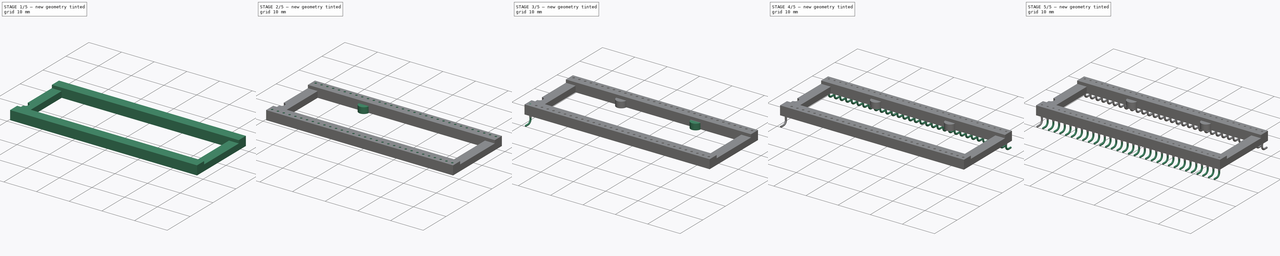
[diagram: build sequence overview — one tinted view per stage of 5, left to right]
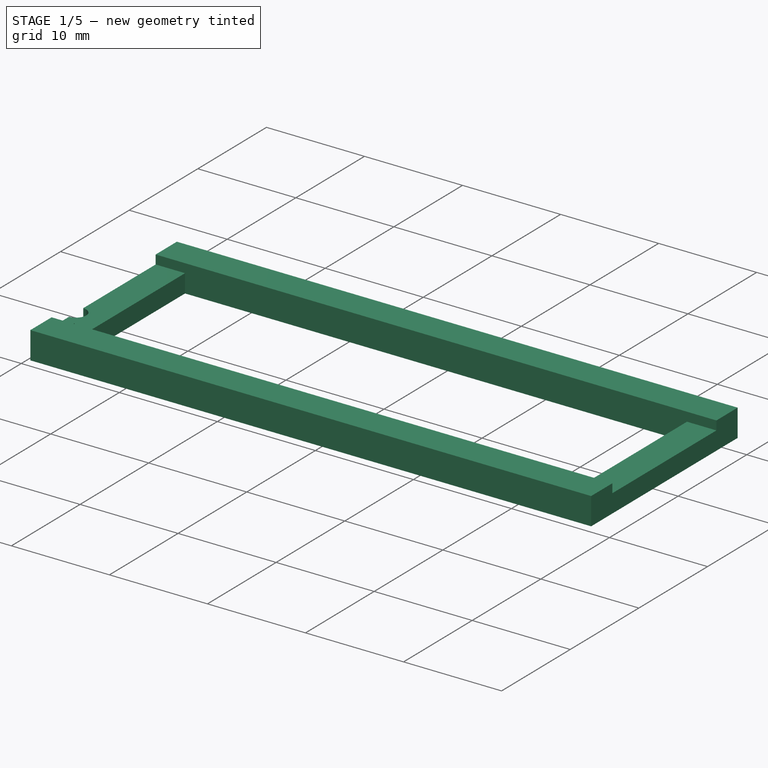
[diagram: stage 1 of 5 — iso view after this stage's code; geometry added in this stage tinted green]
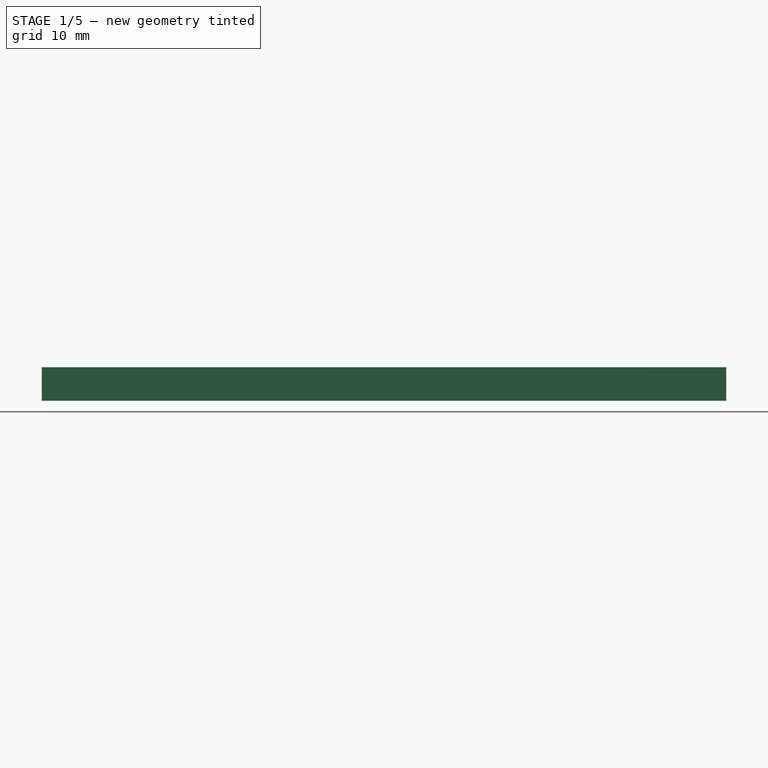
[diagram: stage 1 of 5 — front view after this stage's code; geometry added in this stage tinted green]
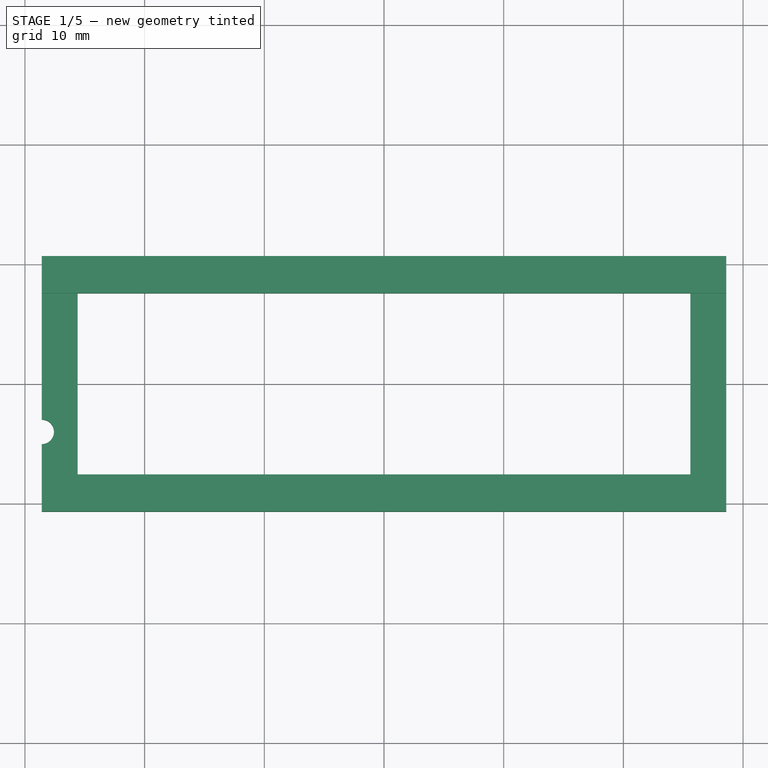
[diagram: stage 1 of 5 — top view after this stage's code; geometry added in this stage tinted green]
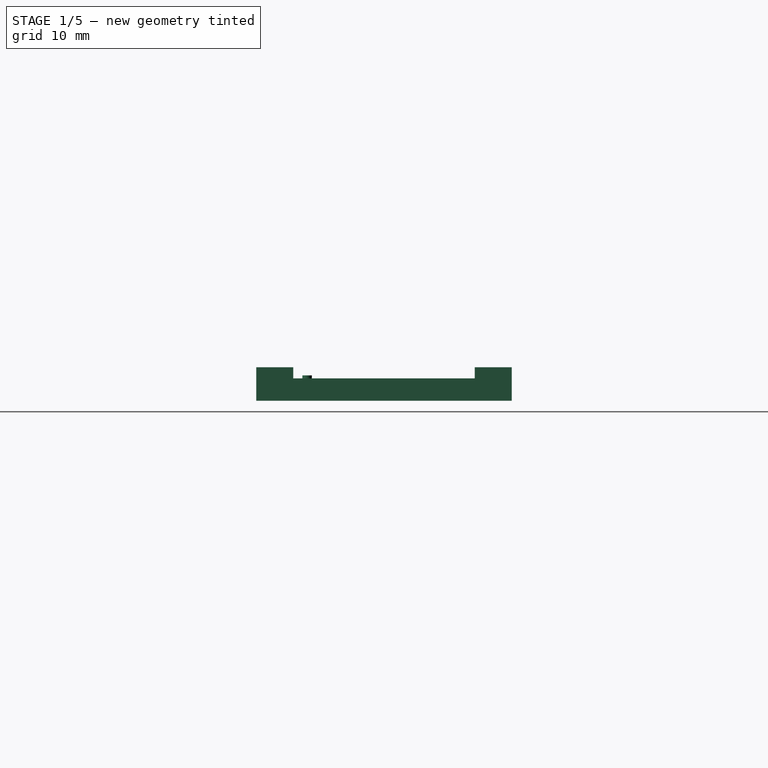
[diagram: stage 1 of 5 — right view after this stage's code; geometry added in this stage tinted green]
FCSTD DOCUMENT  (FreeCAD 0.20R29177 (Git))
Label: Mill-Max_117-43_v2
License: All rights reserved
LicenseURL: http://en.wikipedia.org/wiki/All_rights_reserved
objects: Sketcher::SketchObject×7, PartDesign::Fillet×6, PartDesign::SubtractiveCylinder×5, PartDesign::AdditiveCylinder×4, PartDesign::SubtractiveBox×3, PartDesign::LinearPattern×3, PartDesign::Body×3, PartDesign::AdditivePipe×2, PartDesign::Chamfer×2, Part::FeaturePython×2, PartDesign::AdditiveBox×1, App::Part×1, PartDesign::Mirrored×1, PartDesign::MultiTransform×1
note: 61 computed .brp shape members not serialized (recipe doc carries the construction recipe); baked Part::Feature solids carry a one-line shape summary decoded from their .brp

FEATURE [PartDesign::AdditiveBox] Box
  AttacherType = Attacher::AttachEngine3D
  AttachmentOffset = pos=(-28.6,-10.67,2.8) rot=(0,0,1;0rad)
  Height = 2.79
  Length = 57.2
  MapMode = 5
  Placement = pos=(-28.6,-10.67,2.8) rot=(0,0,1;0rad)
  Support = -> [XY_Plane]
  Width = 21.34
FEATURE [PartDesign::SubtractiveBox] Box001
  AttacherType = Attacher::AttachEngine3D
  AttachmentOffset = pos=(-25.6,-7.58,0) rot=(0,0,1;0rad)
  BaseFeature = -> Box
  Height = 10
  Length = 51.2
  MapMode = 5
  Placement = pos=(-25.6,-7.58,0) rot=(0,0,1;0rad)
  Support = -> [XY_Plane]
  Width = 15.16
FEATURE [PartDesign::SubtractiveBox] Box002
  AttacherType = Attacher::AttachEngine3D
  AttachmentOffset = pos=(-29.16,-7.58,4.67) rot=(0,0,1;0rad)
  BaseFeature = -> Box001
  Height = 0.92
  Length = 4
  MapMode = 5
  Placement = pos=(-29.16,-7.58,4.67) rot=(0,0,1;0rad)
  Support = -> [XY_Plane]
  Width = 15.16
FEATURE [PartDesign::SubtractiveBox] Box003
  AttacherType = Attacher::AttachEngine3D
  AttachmentOffset = pos=(25,-7.58,4.67) rot=(0,0,1;0rad)
  BaseFeature = -> Box002
  Height = 0.92
  Length = 4
  MapMode = 5
  Placement = pos=(25,-7.58,4.67) rot=(0,0,1;0rad)
  Support = -> [XY_Plane]
  Width = 15.16
FEATURE [PartDesign::SubtractiveCylinder] Cylinder  label="Pin1-indication-cut"
  Angle = 180
  AttacherType = Attacher::AttachEngine3D
  AttachmentOffset = pos=(-28.6,-4,0) rot=(0,0,-1;1.5708rad)
  BaseFeature = -> Box003
  FirstAngle = 0
  Height = 5
  MapMode = 5
  Placement = pos=(-28.6,-4,0) rot=(0,0,-1;1.5708rad)
  Radius = 1.025
  SecondAngle = 0
  Support = -> [XY_Plane]
FEATURE [PartDesign::AdditiveCylinder] Cylinder001  label="raised-coin-left"
  Angle = 360
  AttacherType = Attacher::AttachEngine3D
  AttachmentOffset = pos=(-27.559,-6.425,4.67) rot=(0,0,1;0rad)
  BaseFeature = -> Cylinder
  FirstAngle = 0
  Height = 0.25
  MapMode = 5
  Placement = pos=(-27.559,-6.425,4.67) rot=(0,0,1;0rad)
  Radius = 0.4
  SecondAngle = 0
  Support = -> [XY_Plane]
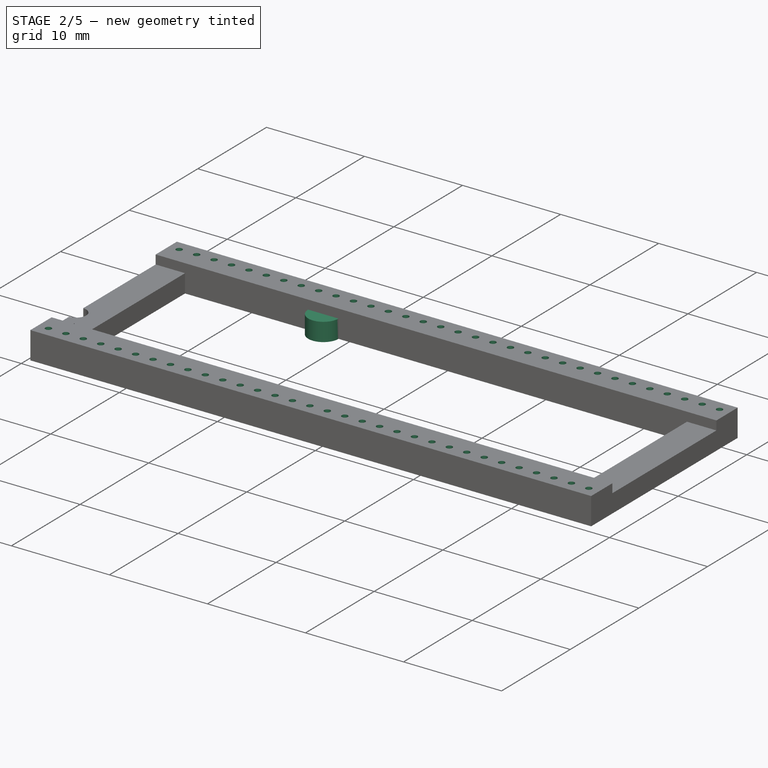
[diagram: stage 2 of 5 — iso view after this stage's code; geometry added in this stage tinted green]
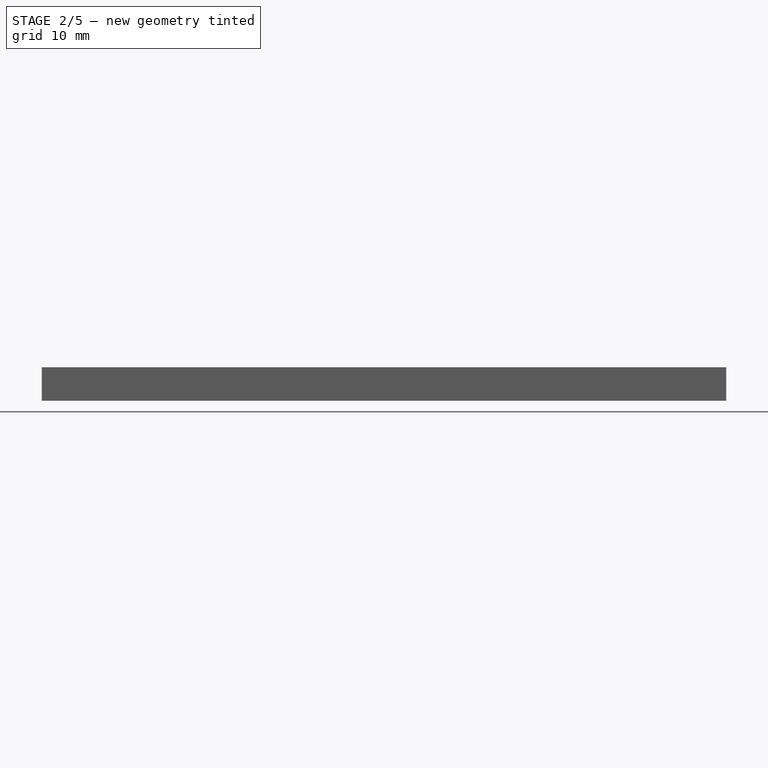
[diagram: stage 2 of 5 — front view after this stage's code; geometry added in this stage tinted green]
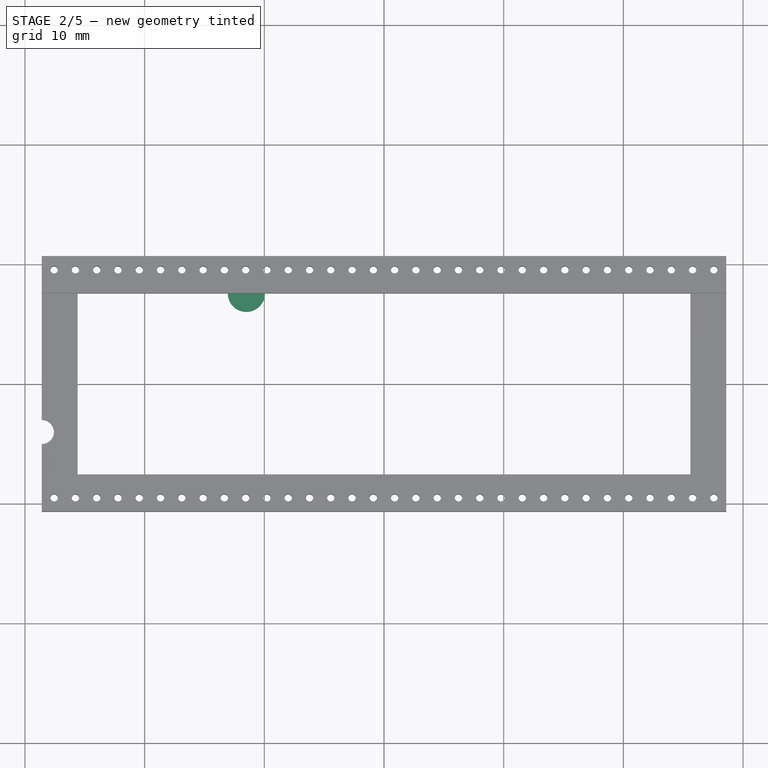
[diagram: stage 2 of 5 — top view after this stage's code; geometry added in this stage tinted green]
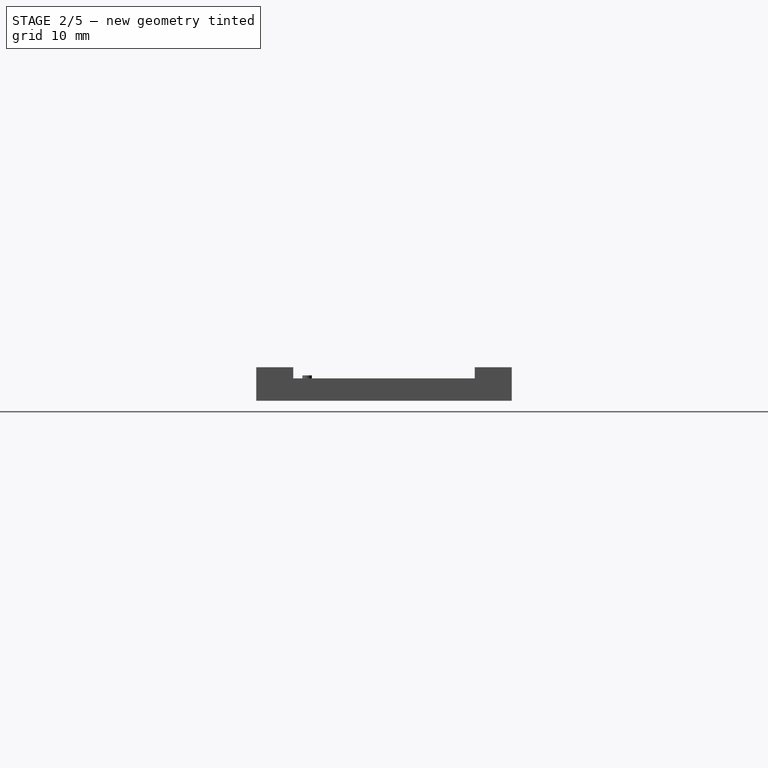
[diagram: stage 2 of 5 — right view after this stage's code; geometry added in this stage tinted green]
FEATURE [PartDesign::SubtractiveCylinder] Cylinder002  label="pin-hole"
  Angle = 360
  AttacherType = Attacher::AttachEngine3D
  AttachmentOffset = pos=(-27.559,-9.525,0) rot=(0,0,1;0rad)
  BaseFeature = -> Cylinder001
  FirstAngle = 0
  Height = 10
  MapMode = 5
  Placement = pos=(-27.559,-9.525,0) rot=(0,0,1;0rad)
  Radius = 0.3105
  SecondAngle = 0
  Support = -> [XY_Plane]
FEATURE [PartDesign::LinearPattern] LinearPattern
  BaseFeature = -> Cylinder002
  Direction = -> X_Axis
  Length = 55.12
  Occurrences = 32
  Originals = -> [Cylinder002]
  Placement = pos=(-27.559,-9.525,0) rot=(0,0,1;0rad)
FEATURE [PartDesign::SubtractiveCylinder] Cylinder003  label="pin-hole-top"
  Angle = 360
  AttacherType = Attacher::AttachEngine3D
  AttachmentOffset = pos=(-27.559,9.525,0) rot=(0,0,1;0rad)
  BaseFeature = -> LinearPattern
  FirstAngle = 0
  Height = 10
  MapMode = 5
  Placement = pos=(-27.559,9.525,0) rot=(0,0,1;0rad)
  Radius = 0.3105
  SecondAngle = 0
  Support = -> [XY_Plane]
FEATURE [PartDesign::LinearPattern] LinearPattern001
  BaseFeature = -> Cylinder003
  Direction = -> X_Axis
  Length = 55.12
  Occurrences = 32
  Originals = -> [Cylinder003]
  Placement = pos=(-27.559,9.525,0) rot=(0,0,1;0rad)
FEATURE [App::Part] Part  label="Pins"
  Group = -> [Body002,Array001,Body001,Array]
  Origin = -> Origin003
FEATURE [PartDesign::AdditiveCylinder] Cylinder008
  Angle = 180
  AttacherType = Attacher::AttachEngine3D
  AttachmentOffset = pos=(-11.5,7.6,2.8) rot=(0,0,1;3.14159rad)
  BaseFeature = -> LinearPattern001
  FirstAngle = 0
  Height = 1.87
  MapMode = 5
  Placement = pos=(-11.5,7.6,2.8) rot=(0,0,1;3.14159rad)
  Radius = 1.55
  SecondAngle = 0
  Support = -> [XY_Plane]
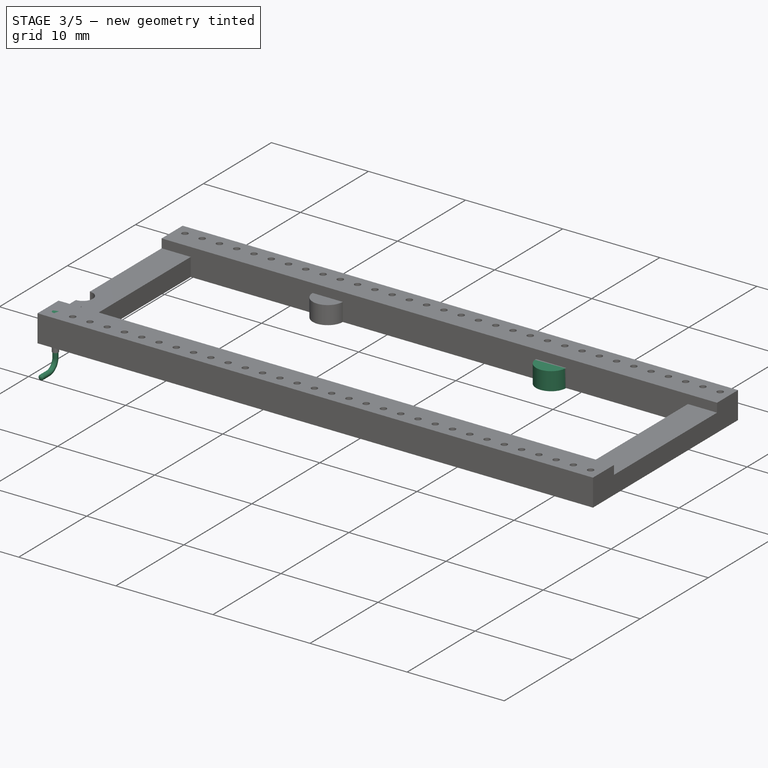
[diagram: stage 3 of 5 — iso view after this stage's code; geometry added in this stage tinted green]
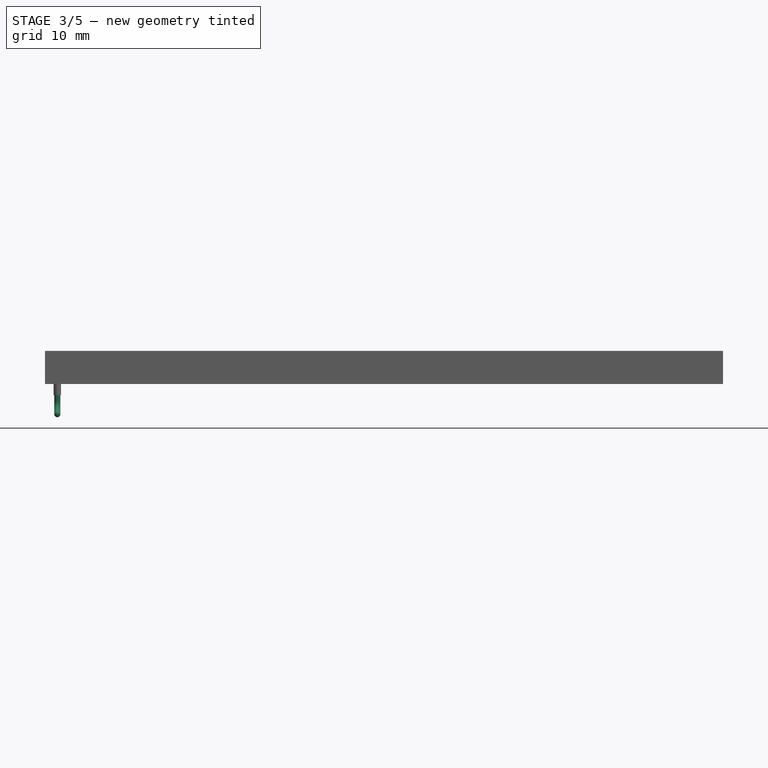
[diagram: stage 3 of 5 — front view after this stage's code; geometry added in this stage tinted green]
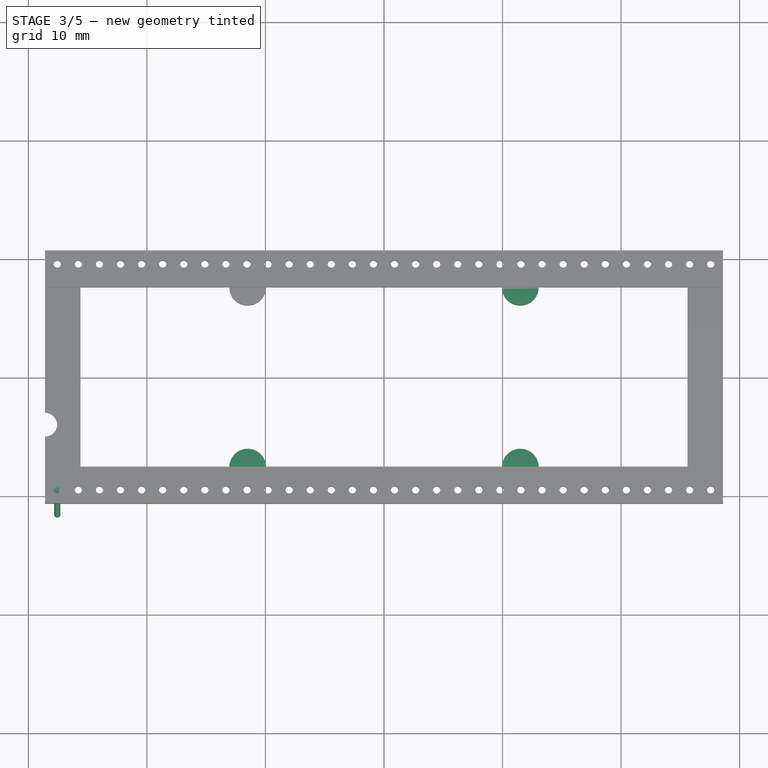
[diagram: stage 3 of 5 — top view after this stage's code; geometry added in this stage tinted green]
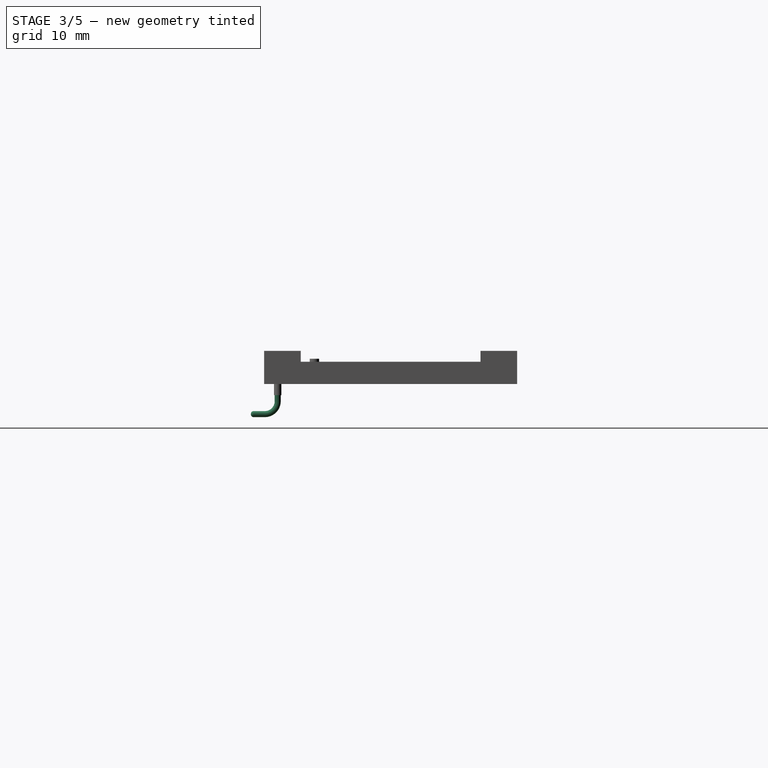
[diagram: stage 3 of 5 — right view after this stage's code; geometry added in this stage tinted green]
FEATURE [PartDesign::AdditiveCylinder] Cylinder006  label="pin-top-base001"
  Angle = 360
  AttacherType = Attacher::AttachEngine3D
  AttachmentOffset = pos=(-27.559,-9.525,1.86) rot=(0,0,1;0rad)
  FirstAngle = 0
  Height = 3.73
  MapMode = 5
  Placement = pos=(-27.559,-9.525,1.86) rot=(0,0,1;0rad)
  Radius = 0.31
  SecondAngle = 0
  Support = -> [XY_Plane002]
FEATURE [Sketcher::SketchObject] Sketch005  label="leg-path-top001"
  FullyConstrained = false
  MapMode = 4
  Placement = pos=(-27.559,-9.525,1.86) rot=(0.57735,0.57735,0.57735;2.0944rad)
  Support = -> [Cylinder006]
  sketch-geometry (3):
    g0: LineSegment StartX=0 StartY=0 StartZ=0 EndX=0 EndY=-0.516088 EndZ=0
    g1: LineSegment StartX=-2.26 StartY=-1.60544 StartZ=0 EndX=-1.08936 EndY=-1.60544 EndZ=0
    g2: ArcOfCircle CenterX=-1.08936 CenterY=-0.516088 CenterZ=0 NormalX=0 NormalY=0 NormalZ=1 AngleXU=0 Radius=1.08936 StartAngle=4.71239 EndAngle=6.28319
  constraints (4):
    c: Coincident(g0,g-1)
    c: Horizontal(g1)
    c: Tangent(g1,g2) = -1.5708
    c: Tangent(g0,g2) = 1.5708
FEATURE [Sketcher::SketchObject] Sketch006  label="leg-length001"
  FullyConstrained = false
  MapMode = 2
  Placement = pos=(-27.559,-9.525,0) rot=(0,0,1;0rad)
  sketch-geometry (3):
    g0: LineSegment StartX=0 StartY=0 StartZ=0 EndX=0 EndY=-2.26 EndZ=0
    g1: LineSegment StartX=0 StartY=0 StartZ=0 EndX=0 EndY=-2.26 EndZ=0
    g2: LineSegment StartX=0 StartY=-2.26 StartZ=0 EndX=0 EndY=0 EndZ=0
  constraints (4):
    c: Coincident(g0,g-1)
    c: PointOnObject(g0,g-2)
    c: Vertical(g1)
    c: Vertical(g2)
FEATURE [Sketcher::SketchObject] Sketch007  label="bend-start001"
  FullyConstrained = false
  MapMode = 5
  Placement = pos=(-27.559,-9.525,1.86) rot=(1,0,0;3.14159rad)
  Support = -> [Cylinder006]
  sketch-geometry (9):
    g0: LineSegment StartX=0.103186 StartY=-0.255 StartZ=0 EndX=0.253276 EndY=-0.107349 EndZ=0
    g1: LineSegment StartX=0.253276 StartY=-0.107349 StartZ=0 EndX=0.255 EndY=0.103186 EndZ=0
    g2: LineSegment StartX=0.255 StartY=0.103186 StartZ=0 EndX=0.107349 EndY=0.253276 EndZ=0
    g3: LineSegment StartX=0.107349 StartY=0.253276 StartZ=0 EndX=-0.103186 EndY=0.255 EndZ=0
    g4: LineSegment StartX=-0.103186 StartY=0.255 StartZ=0 EndX=-0.253276 EndY=0.107349 EndZ=0
    g5: LineSegment StartX=-0.253276 StartY=0.107349 StartZ=0 EndX=-0.255 EndY=-0.103186 EndZ=0
    g6: LineSegment StartX=-0.255 StartY=-0.103186 StartZ=0 EndX=-0.107349 EndY=-0.253276 EndZ=0
    g7: LineSegment StartX=-0.107349 StartY=-0.253276 StartZ=0 EndX=0.103186 EndY=-0.255 EndZ=0
    g8: Circle CenterX=0 CenterY=0 CenterZ=0 NormalX=0 NormalY=0 NormalZ=1 AngleXU=0 Radius=0.275086
  constraints (17):
    c: Coincident(g0,g1)
    c: Coincident(g1,g2)
    c: Coincident(g2,g3)
    c: Coincident(g3,g4)
    c: Coincident(g4,g5)
    c: Coincident(g5,g6)
    c: Coincident(g6,g7)
    c: Coincident(g7,g0)
    c: Equal(g0, g1-g7) x7
    c: PointOnObject(g0,g8)
    c: PointOnObject(g1,g8)
    c: PointOnObject(g2,g8)
    c: PointOnObject(g3,g8)
    c: PointOnObject(g4,g8)
    c: PointOnObject(g5,g8)
    c: PointOnObject(g6,g8)
    c: PointOnObject(g7,g8)
FEATURE [PartDesign::AdditivePipe] AdditivePipe001
  AuxilleryCurvelinear = true
  AuxillerySpineTangent = false
  BaseFeature = -> Cylinder006
  Binormal = (0,0,0)
  Mode = 0
  Placement = pos=(-27.559,-9.525,1.86) rot=(0,0,1;0rad)
  Profile = -> Sketch007
  Spine = -> Sketch005
  SpineTangent = false
  Transformation = 0
  Transition = 0
FEATURE [PartDesign::Fillet] Fillet003
  Base = -> AdditivePipe001 [Edge55,Edge57,Edge49,Edge47]
  BaseFeature = -> AdditivePipe001
  Placement = pos=(-27.559,-9.525,1.86) rot=(0,0,1;0rad)
  Radius = 0.2
  SupportTransform = false
  UseAllEdges = false
FEATURE [PartDesign::Fillet] Fillet004
  Base = -> Fillet003 [Edge83,Edge79,Edge69,Edge65]
  BaseFeature = -> Fillet003
  Placement = pos=(-27.559,-9.525,1.86) rot=(0,0,1;0rad)
  Radius = 0.1
  SupportTransform = false
  UseAllEdges = false
FEATURE [PartDesign::Fillet] Fillet005
  Base = -> Fillet004 [Edge110,Edge92]
  BaseFeature = -> Fillet004
  Placement = pos=(-27.559,-9.525,1.86) rot=(0,0,1;0rad)
  Radius = 0.2205
  SupportTransform = false
  UseAllEdges = false
FEATURE [PartDesign::LinearPattern] LinearPattern002
  Direction = -> X_Axis
  Length = 23
  Occurrences = 2
  Placement = pos=(-11.5,7.6,2.8) rot=(0,0,1;3.14159rad)
FEATURE [PartDesign::Mirrored] Mirrored
  MirrorPlane = -> XZ_Plane
  Placement = pos=(-11.5,7.6,2.8) rot=(0,0,1;3.14159rad)
FEATURE [PartDesign::MultiTransform] MultiTransform
  BaseFeature = -> Cylinder008
  Originals = -> [Cylinder008]
  Placement = pos=(-11.5,7.6,2.8) rot=(0,0,1;3.14159rad)
  Transformations = -> [LinearPattern002,Mirrored]
FEATURE [PartDesign::Body] Body  label="Plastic"
  Group = -> [Box,Box001,Box002,Box003,Cylinder,Cylinder001,Cylinder002,LinearPattern,Cylinder003,LinearPattern001,Sketch002,Cylinder008,MultiTransform,LinearPattern002,Mirrored]
  Origin = -> Origin
  Tip = -> MultiTransform
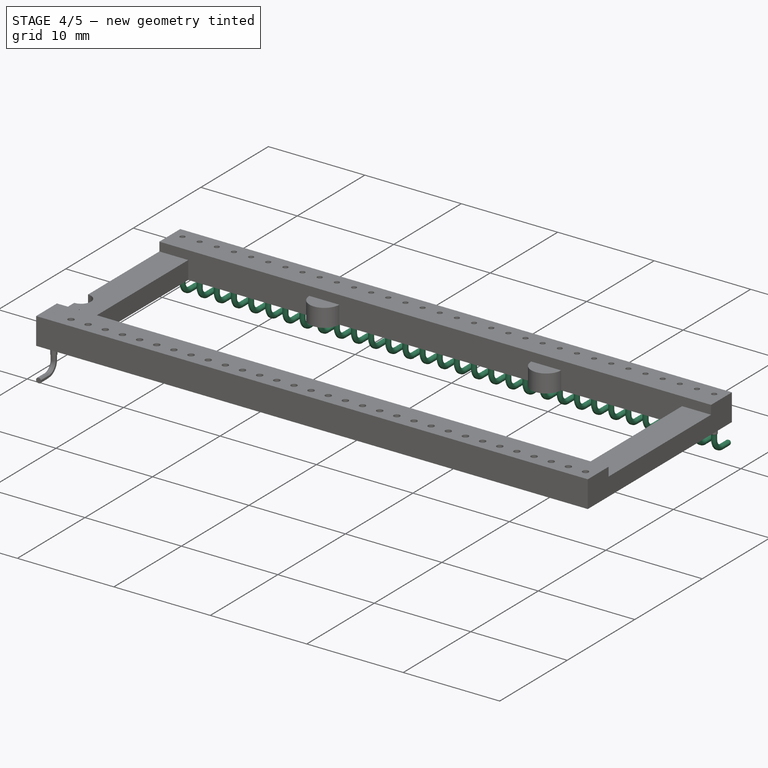
[diagram: stage 4 of 5 — iso view after this stage's code; geometry added in this stage tinted green]
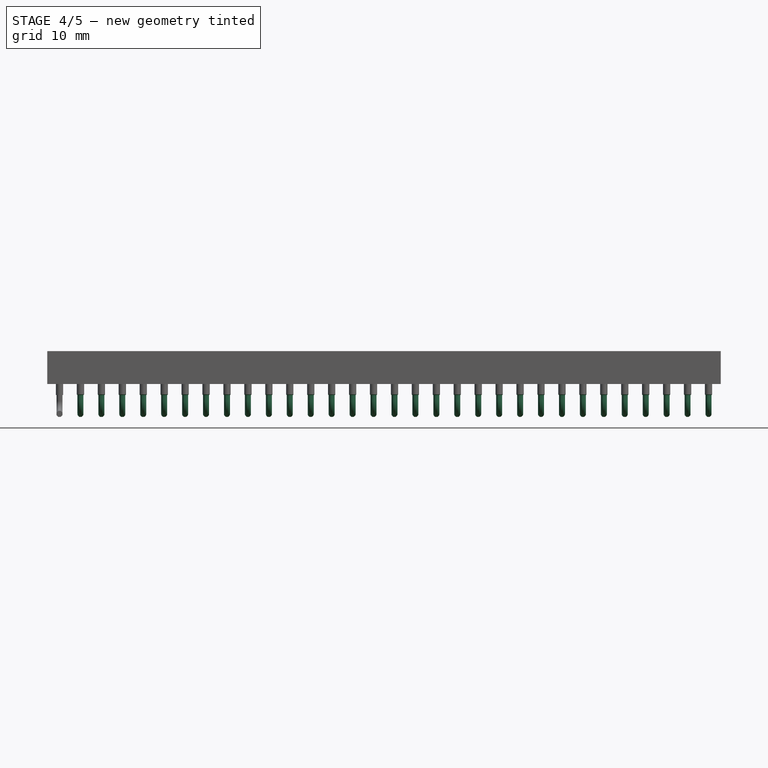
[diagram: stage 4 of 5 — front view after this stage's code; geometry added in this stage tinted green]
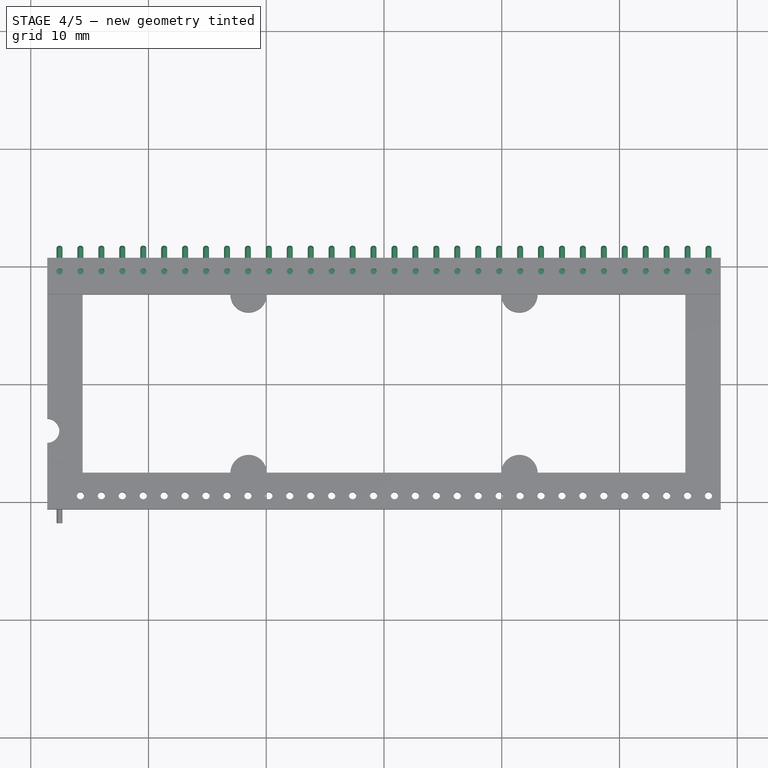
[diagram: stage 4 of 5 — top view after this stage's code; geometry added in this stage tinted green]
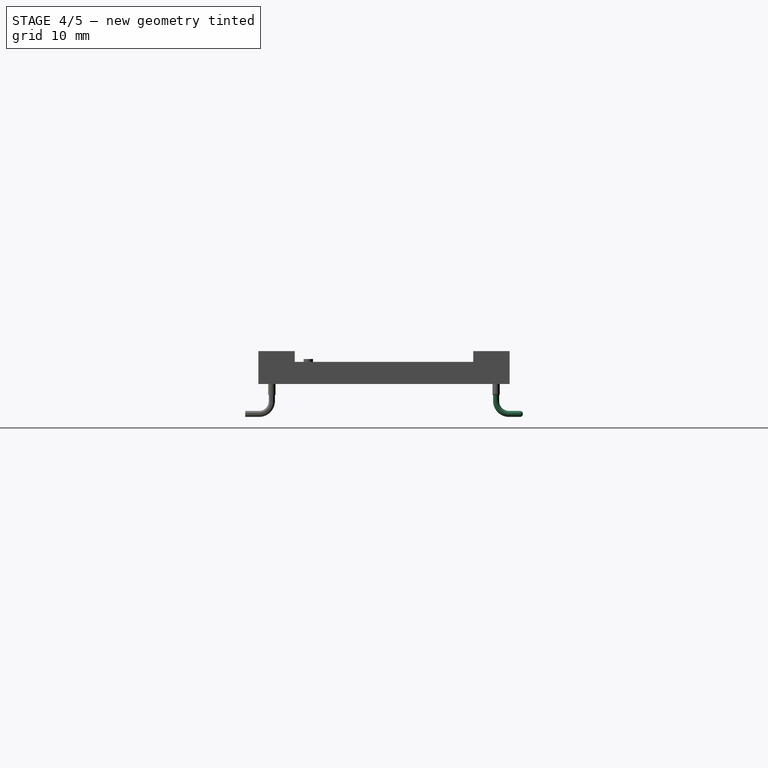
[diagram: stage 4 of 5 — right view after this stage's code; geometry added in this stage tinted green]
FEATURE [PartDesign::AdditiveCylinder] Cylinder004  label="pin-top-base"
  Angle = 360
  AttacherType = Attacher::AttachEngine3D
  AttachmentOffset = pos=(-27.559,-9.525,1.86) rot=(0,0,1;0rad)
  FirstAngle = 0
  Height = 3.73
  MapMode = 5
  Placement = pos=(-27.559,-9.525,1.86) rot=(0,0,1;0rad)
  Radius = 0.31
  SecondAngle = 0
  Support = -> [XY_Plane001]
FEATURE [Sketcher::SketchObject] Sketch002  label="pin-holes-sketch"
  FullyConstrained = false
  sketch-geometry (128):
    g0: Ellipse CenterX=-13.335 CenterY=9.525 CenterZ=0 NormalX=0 NormalY=0 NormalZ=1 MajorRadius=0.36 MinorRadius=0.36 AngleXU=1.5708
    g1: Ellipse CenterX=-13.335 CenterY=9.525 CenterZ=0 NormalX=0 NormalY=0 NormalZ=1 MajorRadius=0.26 MinorRadius=0.26 AngleXU=1.5708
    g2: Ellipse CenterX=-18.669 CenterY=-9.525 CenterZ=0 NormalX=0 NormalY=0 NormalZ=1 MajorRadius=0.36 MinorRadius=0.36 AngleXU=1.5708
    g3: Ellipse CenterX=-18.669 CenterY=-9.525 CenterZ=0 NormalX=0 NormalY=0 NormalZ=1 MajorRadius=0.26 MinorRadius=0.26 AngleXU=1.5708
    g4: Ellipse CenterX=24.003 CenterY=9.525 CenterZ=0 NormalX=0 NormalY=0 NormalZ=1 MajorRadius=0.36 MinorRadius=0.36 AngleXU=1.5708
    g5: Ellipse CenterX=24.003 CenterY=9.525 CenterZ=0 NormalX=0 NormalY=0 NormalZ=1 MajorRadius=0.26 MinorRadius=0.26 AngleXU=1.5708
    g6: Ellipse CenterX=-2.667 CenterY=-9.525 CenterZ=0 NormalX=0 NormalY=0 NormalZ=1 MajorRadius=0.36 MinorRadius=0.36 AngleXU=1.5708
    g7: Ellipse CenterX=-2.667 CenterY=-9.525 CenterZ=0 NormalX=0 NormalY=0 NormalZ=1 MajorRadius=0.26 MinorRadius=0.26 AngleXU=1.5708
    g8: Ellipse CenterX=18.669 CenterY=-9.525 CenterZ=0 NormalX=0 NormalY=0 NormalZ=1 MajorRadius=0.36 MinorRadius=0.36 AngleXU=1.5708
    g9: Ellipse CenterX=18.669 CenterY=-9.525 CenterZ=0 NormalX=0 NormalY=0 NormalZ=1 MajorRadius=0.26 MinorRadius=0.26 AngleXU=1.5708
    g10: Ellipse CenterX=15.113 CenterY=9.525 CenterZ=0 NormalX=0 NormalY=0 NormalZ=1 MajorRadius=0.36 MinorRadius=0.36 AngleXU=1.5708
    g11: Ellipse CenterX=15.113 CenterY=9.525 CenterZ=0 NormalX=0 NormalY=0 NormalZ=1 MajorRadius=0.26 MinorRadius=0.26 AngleXU=1.5708
    g12: Ellipse CenterX=22.225 CenterY=9.525 CenterZ=0 NormalX=0 NormalY=0 NormalZ=1 MajorRadius=0.36 MinorRadius=0.36 AngleXU=1.5708
    g13: Ellipse CenterX=22.225 CenterY=9.525 CenterZ=0 NormalX=0 NormalY=0 NormalZ=1 MajorRadius=0.26 MinorRadius=0.26 AngleXU=1.5708
    g14: Ellipse CenterX=8.001 CenterY=9.525 CenterZ=0 NormalX=0 NormalY=0 NormalZ=1 MajorRadius=0.36 MinorRadius=0.36 AngleXU=1.5708
    g15: Ellipse CenterX=8.001 CenterY=9.525 CenterZ=0 NormalX=0 NormalY=0 NormalZ=1 MajorRadius=0.26 MinorRadius=0.26 AngleXU=1.5708
    g16: Ellipse CenterX=9.779 CenterY=9.525 CenterZ=0 NormalX=0 NormalY=0 NormalZ=1 MajorRadius=0.36 MinorRadius=0.36 AngleXU=1.5708
    g17: Ellipse CenterX=9.779 CenterY=9.525 CenterZ=0 NormalX=0 NormalY=0 NormalZ=1 MajorRadius=0.26 MinorRadius=0.26 AngleXU=1.5708
    g18: Ellipse CenterX=-6.223 CenterY=-9.525 CenterZ=0 NormalX=0 NormalY=0 NormalZ=1 MajorRadius=0.36 MinorRadius=0.36 AngleXU=1.5708
    g19: Ellipse CenterX=-6.223 CenterY=-9.525 CenterZ=0 NormalX=0 NormalY=0 NormalZ=1 MajorRadius=0.26 MinorRadius=0.26 AngleXU=1.5708
    g20: Ellipse CenterX=20.447 CenterY=9.525 CenterZ=0 NormalX=0 NormalY=0 NormalZ=1 MajorRadius=0.36 MinorRadius=0.36 AngleXU=1.5708
    g21: Ellipse CenterX=20.447 CenterY=9.525 CenterZ=0 NormalX=0 NormalY=0 NormalZ=1 MajorRadius=0.26 MinorRadius=0.26 AngleXU=1.5708
    g22: Ellipse CenterX=-20.447 CenterY=-9.525 CenterZ=0 NormalX=0 NormalY=0 NormalZ=1 MajorRadius=0.36 MinorRadius=0.36 AngleXU=1.5708
    g23: Ellipse CenterX=-20.447 CenterY=-9.525 CenterZ=0 NormalX=0 NormalY=0 NormalZ=1 MajorRadius=0.26 MinorRadius=0.26 AngleXU=1.5708
    g24: Ellipse CenterX=13.335 CenterY=9.525 CenterZ=0 NormalX=0 NormalY=0 NormalZ=1 MajorRadius=0.36 MinorRadius=0.36 AngleXU=1.5708
    g25: Ellipse CenterX=13.335 CenterY=9.525 CenterZ=0 NormalX=0 NormalY=0 NormalZ=1 MajorRadius=0.26 MinorRadius=0.26 AngleXU=1.5708
    g26: Ellipse CenterX=-22.225 CenterY=9.525 CenterZ=0 NormalX=0 NormalY=0 NormalZ=1 MajorRadius=0.36 MinorRadius=0.36 AngleXU=1.5708
    g27: Ellipse CenterX=-22.225 CenterY=9.525 CenterZ=0 NormalX=0 NormalY=0 NormalZ=1 MajorRadius=0.26 MinorRadius=0.26 AngleXU=1.5708
    g28: Ellipse CenterX=-25.781 CenterY=-9.525 CenterZ=0 NormalX=0 NormalY=0 NormalZ=1 MajorRadius=0.36 MinorRadius=0.36 AngleXU=1.5708
    g29: Ellipse CenterX=-25.781 CenterY=-9.525 CenterZ=0 NormalX=0 NormalY=0 NormalZ=1 MajorRadius=0.26 MinorRadius=0.26 AngleXU=1.5708
    g30: Ellipse CenterX=-18.669 CenterY=9.525 CenterZ=0 NormalX=0 NormalY=0 NormalZ=1 MajorRadius=0.36 MinorRadius=0.36 AngleXU=1.5708
    g31: Ellipse CenterX=-18.669 CenterY=9.525 CenterZ=0 NormalX=0 NormalY=0 NormalZ=1 MajorRadius=0.26 MinorRadius=0.26 AngleXU=1.5708
    g32: Ellipse CenterX=18.669 CenterY=9.525 CenterZ=0 NormalX=0 NormalY=0 NormalZ=1 MajorRadius=0.36 MinorRadius=0.36 AngleXU=1.5708
    g33: Ellipse CenterX=18.669 CenterY=9.525 CenterZ=0 NormalX=0 NormalY=0 NormalZ=1 MajorRadius=0.26 MinorRadius=0.26 AngleXU=1.5708
    g34: Ellipse CenterX=2.667 CenterY=-9.525 CenterZ=0 NormalX=0 NormalY=0 NormalZ=1 MajorRadius=0.36 MinorRadius=0.36 AngleXU=1.5708
    g35: Ellipse CenterX=2.667 CenterY=-9.525 CenterZ=0 NormalX=0 NormalY=0 NormalZ=1 MajorRadius=0.26 MinorRadius=0.26 AngleXU=1.5708
    g36: Ellipse CenterX=-2.667 CenterY=9.525 CenterZ=0 NormalX=0 NormalY=0 NormalZ=1 MajorRadius=0.36 MinorRadius=0.36 AngleXU=1.5708
    g37: Ellipse CenterX=-2.667 CenterY=9.525 CenterZ=0 NormalX=0 NormalY=0 NormalZ=1 MajorRadius=0.26 MinorRadius=0.26 AngleXU=1.5708
    g38: Ellipse CenterX=-8.001 CenterY=-9.525 CenterZ=0 NormalX=0 NormalY=0 NormalZ=1 MajorRadius=0.36 MinorRadius=0.36 AngleXU=1.5708
    g39: Ellipse CenterX=-8.001 CenterY=-9.525 CenterZ=0 NormalX=0 NormalY=0 NormalZ=1 MajorRadius=0.26 MinorRadius=0.26 AngleXU=1.5708
    g40: Ellipse CenterX=-24.003 CenterY=9.525 CenterZ=0 NormalX=0 NormalY=0 NormalZ=1 MajorRadius=0.36 MinorRadius=0.36 AngleXU=1.5708
    g41: Ellipse CenterX=-24.003 CenterY=9.525 CenterZ=0 NormalX=0 NormalY=0 NormalZ=1 MajorRadius=0.26 MinorRadius=0.26 AngleXU=1.5708
    g42: Ellipse CenterX=0.889 CenterY=-9.525 CenterZ=0 NormalX=0 NormalY=0 NormalZ=1 MajorRadius=0.36 MinorRadius=0.36 AngleXU=1.5708
    g43: Ellipse CenterX=0.889 CenterY=-9.525 CenterZ=0 NormalX=0 NormalY=0 NormalZ=1 MajorRadius=0.26 MinorRadius=0.26 AngleXU=1.5708
    g44: Ellipse CenterX=25.781 CenterY=9.525 CenterZ=0 NormalX=0 NormalY=0 NormalZ=1 MajorRadius=0.36 MinorRadius=0.36 AngleXU=1.5708
    g45: Ellipse CenterX=25.781 CenterY=9.525 CenterZ=0 NormalX=0 NormalY=0 NormalZ=1 MajorRadius=0.26 MinorRadius=0.26 AngleXU=1.5708
    g46: Ellipse CenterX=16.891 CenterY=9.525 CenterZ=0 NormalX=0 NormalY=0 NormalZ=1 MajorRadius=0.36 MinorRadius=0.36 AngleXU=1.5708
    g47: Ellipse CenterX=16.891 CenterY=9.525 CenterZ=0 NormalX=0 NormalY=0 NormalZ=1 MajorRadius=0.26 MinorRadius=0.26 AngleXU=1.5708
    g48: Ellipse CenterX=0.889 CenterY=9.525 CenterZ=0 NormalX=0 NormalY=0 NormalZ=1 MajorRadius=0.36 MinorRadius=0.36 AngleXU=1.5708
    g49: Ellipse CenterX=0.889 CenterY=9.525 CenterZ=0 NormalX=0 NormalY=0 NormalZ=1 MajorRadius=0.26 MinorRadius=0.26 AngleXU=1.5708
    g50: Ellipse CenterX=15.113 CenterY=-9.525 CenterZ=0 NormalX=0 NormalY=0 NormalZ=1 MajorRadius=0.36 MinorRadius=0.36 AngleXU=1.5708
    g51: Ellipse CenterX=15.113 CenterY=-9.525 CenterZ=0 NormalX=0 NormalY=0 NormalZ=1 MajorRadius=0.26 MinorRadius=0.26 AngleXU=1.5708
    g52: Ellipse CenterX=6.223 CenterY=-9.525 CenterZ=0 NormalX=0 NormalY=0 NormalZ=1 MajorRadius=0.36 MinorRadius=0.36 AngleXU=1.5708
    g53: Ellipse CenterX=6.223 CenterY=-9.525 CenterZ=0 NormalX=0 NormalY=0 NormalZ=1 MajorRadius=0.26 MinorRadius=0.26 AngleXU=1.5708
    g54: Ellipse CenterX=4.445 CenterY=-9.525 CenterZ=0 NormalX=0 NormalY=0 NormalZ=1 MajorRadius=0.36 MinorRadius=0.36 AngleXU=1.5708
    g55: Ellipse CenterX=4.445 CenterY=-9.525 CenterZ=0 NormalX=0 NormalY=0 NormalZ=1 MajorRadius=0.26 MinorRadius=0.26 AngleXU=1.5708
    g56: Ellipse CenterX=-13.335 CenterY=-9.525 CenterZ=0 NormalX=0 NormalY=0 NormalZ=1 MajorRadius=0.36 MinorRadius=0.36 AngleXU=1.5708
    g57: Ellipse CenterX=-13.335 CenterY=-9.525 CenterZ=0 NormalX=0 NormalY=0 NormalZ=1 MajorRadius=0.26 MinorRadius=0.26 AngleXU=1.5708
    g58: Ellipse CenterX=8.001 CenterY=-9.525 CenterZ=0 NormalX=0 NormalY=0 NormalZ=1 MajorRadius=0.36 MinorRadius=0.36 AngleXU=1.5708
    g59: Ellipse CenterX=8.001 CenterY=-9.525 CenterZ=0 NormalX=0 NormalY=0 NormalZ=1 MajorRadius=0.26 MinorRadius=0.26 AngleXU=1.5708
    g60: Ellipse CenterX=11.557 CenterY=-9.525 CenterZ=0 NormalX=0 NormalY=0 NormalZ=1 MajorRadius=0.36 MinorRadius=0.36 AngleXU=1.5708
    g61: Ellipse CenterX=11.557 CenterY=-9.525 CenterZ=0 NormalX=0 NormalY=0 NormalZ=1 MajorRadius=0.26 MinorRadius=0.26 AngleXU=1.5708
    g62: Ellipse CenterX=2.667 CenterY=9.525 CenterZ=0 NormalX=0 NormalY=0 NormalZ=1 MajorRadius=0.36 MinorRadius=0.36 AngleXU=1.5708
    g63: Ellipse CenterX=2.667 CenterY=9.525 CenterZ=0 NormalX=0 NormalY=0 NormalZ=1 MajorRadius=0.26 MinorRadius=0.26 AngleXU=1.5708
    g64: Ellipse CenterX=-27.559 CenterY=-9.525 CenterZ=0 NormalX=0 NormalY=0 NormalZ=1 MajorRadius=0.36 MinorRadius=0.36 AngleXU=1.5708
    g65: Ellipse CenterX=-27.559 CenterY=-9.525 CenterZ=0 NormalX=0 NormalY=0 NormalZ=1 MajorRadius=0.26 MinorRadius=0.26 AngleXU=1.5708
    g66: Ellipse CenterX=13.335 CenterY=-9.525 CenterZ=0 NormalX=0 NormalY=0 NormalZ=1 MajorRadius=0.36 MinorRadius=0.36 AngleXU=1.5708
    g67: Ellipse CenterX=13.335 CenterY=-9.525 CenterZ=0 NormalX=0 NormalY=0 NormalZ=1 MajorRadius=0.26 MinorRadius=0.26 AngleXU=1.5708
    g68: Ellipse CenterX=27.559 CenterY=-9.525 CenterZ=0 NormalX=0 NormalY=0 NormalZ=1 MajorRadius=0.36 MinorRadius=0.36 AngleXU=1.5708
    g69: Ellipse CenterX=27.559 CenterY=-9.525 CenterZ=0 NormalX=0 NormalY=0 NormalZ=1 MajorRadius=0.26 MinorRadius=0.26 AngleXU=1.5708
    g70: Ellipse CenterX=-11.557 CenterY=9.525 CenterZ=0 NormalX=0 NormalY=0 NormalZ=1 MajorRadius=0.36 MinorRadius=0.36 AngleXU=1.5708
    g71: Ellipse CenterX=-11.557 CenterY=9.525 CenterZ=0 NormalX=0 NormalY=0 NormalZ=1 MajorRadius=0.26 MinorRadius=0.26 AngleXU=1.5708
    g72: Ellipse CenterX=-24.003 CenterY=-9.525 CenterZ=0 NormalX=0 NormalY=0 NormalZ=1 MajorRadius=0.36 MinorRadius=0.36 AngleXU=1.5708
    g73: Ellipse CenterX=-24.003 CenterY=-9.525 CenterZ=0 NormalX=0 NormalY=0 NormalZ=1 MajorRadius=0.26 MinorRadius=0.26 AngleXU=1.5708
    g74: Ellipse CenterX=16.891 CenterY=-9.525 CenterZ=0 NormalX=0 NormalY=0 NormalZ=1 MajorRadius=0.36 MinorRadius=0.36 AngleXU=1.5708
    g75: Ellipse CenterX=16.891 CenterY=-9.525 CenterZ=0 NormalX=0 NormalY=0 NormalZ=1 MajorRadius=0.26 MinorRadius=0.26 AngleXU=1.5708
    g76: Ellipse CenterX=-11.557 CenterY=-9.525 CenterZ=0 NormalX=0 NormalY=0 NormalZ=1 MajorRadius=0.36 MinorRadius=0.36 AngleXU=1.5708
    g77: Ellipse CenterX=-11.557 CenterY=-9.525 CenterZ=0 NormalX=0 NormalY=0 NormalZ=1 MajorRadius=0.26 MinorRadius=0.26 AngleXU=1.5708
    g78: Ellipse CenterX=6.223 CenterY=9.525 CenterZ=0 NormalX=0 NormalY=0 NormalZ=1 MajorRadius=0.36 MinorRadius=0.36 AngleXU=1.5708
    g79: Ellipse CenterX=6.223 CenterY=9.525 CenterZ=0 NormalX=0 NormalY=0 NormalZ=1 MajorRadius=0.26 MinorRadius=0.26 AngleXU=1.5708
    g80: Ellipse CenterX=11.557 CenterY=9.525 CenterZ=0 NormalX=0 NormalY=0 NormalZ=1 MajorRadius=0.36 MinorRadius=0.36 AngleXU=1.5708
    g81: Ellipse CenterX=11.557 CenterY=9.525 CenterZ=0 NormalX=0 NormalY=0 NormalZ=1 MajorRadius=0.26 MinorRadius=0.26 AngleXU=1.5708
    g82: Ellipse CenterX=-15.113 CenterY=9.525 CenterZ=0 NormalX=0 NormalY=0 NormalZ=1 MajorRadius=0.36 MinorRadius=0.36 AngleXU=1.5708
    g83: Ellipse CenterX=-15.113 CenterY=9.525 CenterZ=0 NormalX=0 NormalY=0 NormalZ=1 MajorRadius=0.26 MinorRadius=0.26 AngleXU=1.5708
    g84: Ellipse CenterX=20.447 CenterY=-9.525 CenterZ=0 NormalX=0 NormalY=0 NormalZ=1 MajorRadius=0.36 MinorRadius=0.36 AngleXU=1.5708
    g85: Ellipse CenterX=20.447 CenterY=-9.525 CenterZ=0 NormalX=0 NormalY=0 NormalZ=1 MajorRadius=0.26 MinorRadius=0.26 AngleXU=1.5708
    g86: Ellipse CenterX=-4.445 CenterY=9.525 CenterZ=0 NormalX=0 NormalY=0 NormalZ=1 MajorRadius=0.36 MinorRadius=0.36 AngleXU=1.5708
    g87: Ellipse CenterX=-4.445 CenterY=9.525 CenterZ=0 NormalX=0 NormalY=0 NormalZ=1 MajorRadius=0.26 MinorRadius=0.26 AngleXU=1.5708
    g88: Ellipse CenterX=-22.225 CenterY=-9.525 CenterZ=0 NormalX=0 NormalY=0 NormalZ=1 MajorRadius=0.36 MinorRadius=0.36 AngleXU=1.5708
    g89: Ellipse CenterX=-22.225 CenterY=-9.525 CenterZ=0 NormalX=0 NormalY=0 NormalZ=1 MajorRadius=0.26 MinorRadius=0.26 AngleXU=1.5708
    g90: Ellipse CenterX=-9.779 CenterY=9.525 CenterZ=0 NormalX=0 NormalY=0 NormalZ=1 MajorRadius=0.36 MinorRadius=0.36 AngleXU=1.5708
    g91: Ellipse CenterX=-9.779 CenterY=9.525 CenterZ=0 NormalX=0 NormalY=0 NormalZ=1 MajorRadius=0.26 MinorRadius=0.26 AngleXU=1.5708
    g92: Ellipse CenterX=25.781 CenterY=-9.525 CenterZ=0 NormalX=0 NormalY=0 NormalZ=1 MajorRadius=0.36 MinorRadius=0.36 AngleXU=1.5708
    g93: Ellipse CenterX=25.781 CenterY=-9.525 CenterZ=0 NormalX=0 NormalY=0 NormalZ=1 MajorRadius=0.26 MinorRadius=0.26 AngleXU=1.5708
    g94: Ellipse CenterX=-9.779 CenterY=-9.525 CenterZ=0 NormalX=0 NormalY=0 NormalZ=1 MajorRadius=0.36 MinorRadius=0.36 AngleXU=1.5708
    g95: Ellipse CenterX=-9.779 CenterY=-9.525 CenterZ=0 NormalX=0 NormalY=0 NormalZ=1 MajorRadius=0.26 MinorRadius=0.26 AngleXU=1.5708
    g96: Ellipse CenterX=9.779 CenterY=-9.525 CenterZ=0 NormalX=0 NormalY=0 NormalZ=1 MajorRadius=0.36 MinorRadius=0.36 AngleXU=1.5708
    g97: Ellipse CenterX=9.779 CenterY=-9.525 CenterZ=0 NormalX=0 NormalY=0 NormalZ=1 MajorRadius=0.26 MinorRadius=0.26 AngleXU=1.5708
    g98: Ellipse CenterX=-27.559 CenterY=9.525 CenterZ=0 NormalX=0 NormalY=0 NormalZ=1 MajorRadius=0.36 MinorRadius=0.36 AngleXU=1.5708
    g99: Ellipse CenterX=-27.559 CenterY=9.525 CenterZ=0 NormalX=0 NormalY=0 NormalZ=1 MajorRadius=0.26 MinorRadius=0.26 AngleXU=1.5708
    g100: Ellipse CenterX=-25.781 CenterY=9.525 CenterZ=0 NormalX=0 NormalY=0 NormalZ=1 MajorRadius=0.36 MinorRadius=0.36 AngleXU=1.5708
    g101: Ellipse CenterX=-25.781 CenterY=9.525 CenterZ=0 NormalX=0 NormalY=0 NormalZ=1 MajorRadius=0.26 MinorRadius=0.26 AngleXU=1.5708
    g102: Ellipse CenterX=-0.889 CenterY=-9.525 CenterZ=0 NormalX=0 NormalY=0 NormalZ=1 MajorRadius=0.36 MinorRadius=0.36 AngleXU=1.5708
    g103: Ellipse CenterX=-0.889 CenterY=-9.525 CenterZ=0 NormalX=0 NormalY=0 NormalZ=1 MajorRadius=0.26 MinorRadius=0.26 AngleXU=1.5708
    g104: Ellipse CenterX=4.445 CenterY=9.525 CenterZ=0 NormalX=0 NormalY=0 NormalZ=1 MajorRadius=0.36 MinorRadius=0.36 AngleXU=1.5708
    g105: Ellipse CenterX=4.445 CenterY=9.525 CenterZ=0 NormalX=0 NormalY=0 NormalZ=1 MajorRadius=0.26 MinorRadius=0.26 AngleXU=1.5708
    g106: Ellipse CenterX=-0.889 CenterY=9.525 CenterZ=0 NormalX=0 NormalY=0 NormalZ=1 MajorRadius=0.36 MinorRadius=0.36 AngleXU=1.5708
    g107: Ellipse CenterX=-0.889 CenterY=9.525 CenterZ=0 NormalX=0 NormalY=0 NormalZ=1 MajorRadius=0.26 MinorRadius=0.26 AngleXU=1.5708
    g108: Ellipse CenterX=-20.447 CenterY=9.525 CenterZ=0 NormalX=0 NormalY=0 NormalZ=1 MajorRadius=0.36 MinorRadius=0.36 AngleXU=1.5708
    g109: Ellipse CenterX=-20.447 CenterY=9.525 CenterZ=0 NormalX=0 NormalY=0 NormalZ=1 MajorRadius=0.26 MinorRadius=0.26 AngleXU=1.5708
    g110: Ellipse CenterX=27.559 CenterY=9.525 CenterZ=0 NormalX=0 NormalY=0 NormalZ=1 MajorRadius=0.36 MinorRadius=0.36 AngleXU=1.5708
    g111: Ellipse CenterX=27.559 CenterY=9.525 CenterZ=0 NormalX=0 NormalY=0 NormalZ=1 MajorRadius=0.26 MinorRadius=0.26 AngleXU=1.5708
    g112: Ellipse CenterX=22.225 CenterY=-9.525 CenterZ=0 NormalX=0 NormalY=0 NormalZ=1 MajorRadius=0.36 MinorRadius=0.36 AngleXU=1.5708
    g113: Ellipse CenterX=22.225 CenterY=-9.525 CenterZ=0 NormalX=0 NormalY=0 NormalZ=1 MajorRadius=0.26 MinorRadius=0.26 AngleXU=1.5708
    g114: Ellipse CenterX=-8.001 CenterY=9.525 CenterZ=0 NormalX=0 NormalY=0 NormalZ=1 MajorRadius=0.36 MinorRadius=0.36 AngleXU=1.5708
    g115: Ellipse CenterX=-8.001 CenterY=9.525 CenterZ=0 NormalX=0 NormalY=0 NormalZ=1 MajorRadius=0.26 MinorRadius=0.26 AngleXU=1.5708
    g116: Ellipse CenterX=-16.891 CenterY=9.525 CenterZ=0 NormalX=0 NormalY=0 NormalZ=1 MajorRadius=0.36 MinorRadius=0.36 AngleXU=1.5708
    g117: Ellipse CenterX=-16.891 CenterY=9.525 CenterZ=0 NormalX=0 NormalY=0 NormalZ=1 MajorRadius=0.26 MinorRadius=0.26 AngleXU=1.5708
    g118: Ellipse CenterX=24.003 CenterY=-9.525 CenterZ=0 NormalX=0 NormalY=0 NormalZ=1 MajorRadius=0.36 MinorRadius=0.36 AngleXU=1.5708
    g119: Ellipse CenterX=24.003 CenterY=-9.525 CenterZ=0 NormalX=0 NormalY=0 NormalZ=1 MajorRadius=0.26 MinorRadius=0.26 AngleXU=1.5708
    g120: Ellipse CenterX=-16.891 CenterY=-9.525 CenterZ=0 NormalX=0 NormalY=0 NormalZ=1 MajorRadius=0.36 MinorRadius=0.36 AngleXU=1.5708
    g121: Ellipse CenterX=-16.891 CenterY=-9.525 CenterZ=0 NormalX=0 NormalY=0 NormalZ=1 MajorRadius=0.26 MinorRadius=0.26 AngleXU=1.5708
    g122: Ellipse CenterX=-6.223 CenterY=9.525 CenterZ=0 NormalX=0 NormalY=0 NormalZ=1 MajorRadius=0.36 MinorRadius=0.36 AngleXU=1.5708
    g123: Ellipse CenterX=-6.223 CenterY=9.525 CenterZ=0 NormalX=0 NormalY=0 NormalZ=1 MajorRadius=0.26 MinorRadius=0.26 AngleXU=1.5708
    g124: Ellipse CenterX=-4.445 CenterY=-9.525 CenterZ=0 NormalX=0 NormalY=0 NormalZ=1 MajorRadius=0.36 MinorRadius=0.36 AngleXU=1.5708
    g125: Ellipse CenterX=-4.445 CenterY=-9.525 CenterZ=0 NormalX=0 NormalY=0 NormalZ=1 MajorRadius=0.26 MinorRadius=0.26 AngleXU=1.5708
    g126: Ellipse CenterX=-15.113 CenterY=-9.525 CenterZ=0 NormalX=0 NormalY=0 NormalZ=1 MajorRadius=0.36 MinorRadius=0.36 AngleXU=1.5708
    g127: Ellipse CenterX=-15.113 CenterY=-9.525 CenterZ=0 NormalX=0 NormalY=0 NormalZ=1 MajorRadius=0.26 MinorRadius=0.26 AngleXU=1.5708
FEATURE [Sketcher::SketchObject] Sketch  label="leg-path-top"
  FullyConstrained = false
  MapMode = 4
  Placement = pos=(-27.559,-9.525,1.86) rot=(0.57735,0.57735,0.57735;2.0944rad)
  Support = -> [Cylinder004]
  sketch-geometry (3):
    g0: LineSegment StartX=0 StartY=0 StartZ=0 EndX=0 EndY=-0.516088 EndZ=0
    g1: LineSegment StartX=-2.26 StartY=-1.60544 StartZ=0 EndX=-1.08936 EndY=-1.60544 EndZ=0
    g2: ArcOfCircle CenterX=-1.08936 CenterY=-0.516088 CenterZ=0 NormalX=0 NormalY=0 NormalZ=1 AngleXU=0 Radius=1.08936 StartAngle=4.71239 EndAngle=6.28319
  constraints (4):
    c: Coincident(g0,g-1)
    c: Horizontal(g1)
    c: Tangent(g1,g2) = -1.5708
    c: Tangent(g0,g2) = 1.5708
FEATURE [Sketcher::SketchObject] Sketch004  label="bend-start"
  FullyConstrained = false
  MapMode = 5
  Placement = pos=(-27.559,-9.525,1.86) rot=(1,0,0;3.14159rad)
  Support = -> [Cylinder004]
  sketch-geometry (9):
    g0: LineSegment StartX=0.103186 StartY=-0.255 StartZ=0 EndX=0.253276 EndY=-0.107349 EndZ=0
    g1: LineSegment StartX=0.253276 StartY=-0.107349 StartZ=0 EndX=0.255 EndY=0.103186 EndZ=0
    g2: LineSegment StartX=0.255 StartY=0.103186 StartZ=0 EndX=0.107349 EndY=0.253276 EndZ=0
    g3: LineSegment StartX=0.107349 StartY=0.253276 StartZ=0 EndX=-0.103186 EndY=0.255 EndZ=0
    g4: LineSegment StartX=-0.103186 StartY=0.255 StartZ=0 EndX=-0.253276 EndY=0.107349 EndZ=0
    g5: LineSegment StartX=-0.253276 StartY=0.107349 StartZ=0 EndX=-0.255 EndY=-0.103186 EndZ=0
    g6: LineSegment StartX=-0.255 StartY=-0.103186 StartZ=0 EndX=-0.107349 EndY=-0.253276 EndZ=0
    g7: LineSegment StartX=-0.107349 StartY=-0.253276 StartZ=0 EndX=0.103186 EndY=-0.255 EndZ=0
    g8: Circle CenterX=0 CenterY=0 CenterZ=0 NormalX=0 NormalY=0 NormalZ=1 AngleXU=0 Radius=0.275086
  constraints (17):
    c: Coincident(g0,g1)
    c: Coincident(g1,g2)
    c: Coincident(g2,g3)
    c: Coincident(g3,g4)
    c: Coincident(g4,g5)
    c: Coincident(g5,g6)
    c: Coincident(g6,g7)
    c: Coincident(g7,g0)
    c: Equal(g0, g1-g7) x7
    c: PointOnObject(g0,g8)
    c: PointOnObject(g1,g8)
    c: PointOnObject(g2,g8)
    c: PointOnObject(g3,g8)
    c: PointOnObject(g4,g8)
    c: PointOnObject(g5,g8)
    c: PointOnObject(g6,g8)
    c: PointOnObject(g7,g8)
FEATURE [PartDesign::AdditivePipe] AdditivePipe
  AuxilleryCurvelinear = true
  AuxillerySpineTangent = false
  BaseFeature = -> Cylinder004
  Binormal = (0,0,0)
  Mode = 0
  Placement = pos=(-27.559,-9.525,1.86) rot=(0,0,1;0rad)
  Profile = -> Sketch004
  Spine = -> Sketch
  SpineTangent = false
  Transformation = 0
  Transition = 0
FEATURE [PartDesign::SubtractiveCylinder] Cylinder007
  Angle = 360
  AttacherType = Attacher::AttachEngine3D
  AttachmentOffset = pos=(-27.559,-9.525,1.91) rot=(0,0,1;0rad)
  BaseFeature = -> Fillet005
  FirstAngle = 0
  Height = 3.68
  MapMode = 5
  Placement = pos=(-27.559,-9.525,1.91) rot=(0,0,1;0rad)
  Radius = 0.255
  SecondAngle = 0
  Support = -> [XY_Plane002]
FEATURE [PartDesign::Chamfer] Chamfer001  label="final-pin-shape001"
  Angle = 49.15
  Base = -> Cylinder007 [Edge79]
  BaseFeature = -> Cylinder007
  ChamferType = 2
  FlipDirection = false
  Placement = pos=(-27.559,-9.525,1.91) rot=(0,0,1;0rad)
  Size = 0.042
  Size2 = 1
  SupportTransform = false
  UseAllEdges = false
FEATURE [PartDesign::Body] Body002  label="base-pin002"
  Group = -> [Cylinder006,Sketch006,Sketch005,Sketch007,AdditivePipe001,Fillet003,Fillet004,Fillet005,Cylinder007,Chamfer001]
  Origin = -> Origin002
  Tip = -> Chamfer001
FEATURE [Part::FeaturePython] Array001  label="top-pins"  # Draft array (typed FeaturePython)
  AlwaysSyncPlacement = false
  Angle = 360
  ArrayType = 0
  Axis = (0,0,1)
  Base = -> Body002
  Center = (0,0,0)
  Count = 32
  ExpandArray = false
  Fuse = false
  IntervalAxis = (0,0,0)
  IntervalX = (1.778,0,0)
  IntervalY = (0,100,0)
  IntervalZ = (0,0,100)
  NumberCircles = 3
  NumberPolar = 5
  NumberX = 32
  NumberY = 1
  NumberZ = 1
  Placement = pos=(0,0,0) rot=(0,0,1;3.14159rad)
  PlacementList = 32 placements: arithmetic series from (0,0,0) step (1.778,0,0) to (55.118,0,0)
  RadialDistance = 50
  ScaleList = (32) [(1,1,1),(1,1,1),(1,1,1),(1,1,1),(1,1,1),(1,1,1),(1,1,1),(1,1,1),(1,1,1),(1,1,1),(1,1,1),(1,1,1),(1,1,1),(1,1,1),(1,1,1),(1,1,1),(1,1,1),(1,1,1),+14 more]
  Symmetry = 1
  TangentialDistance = 25
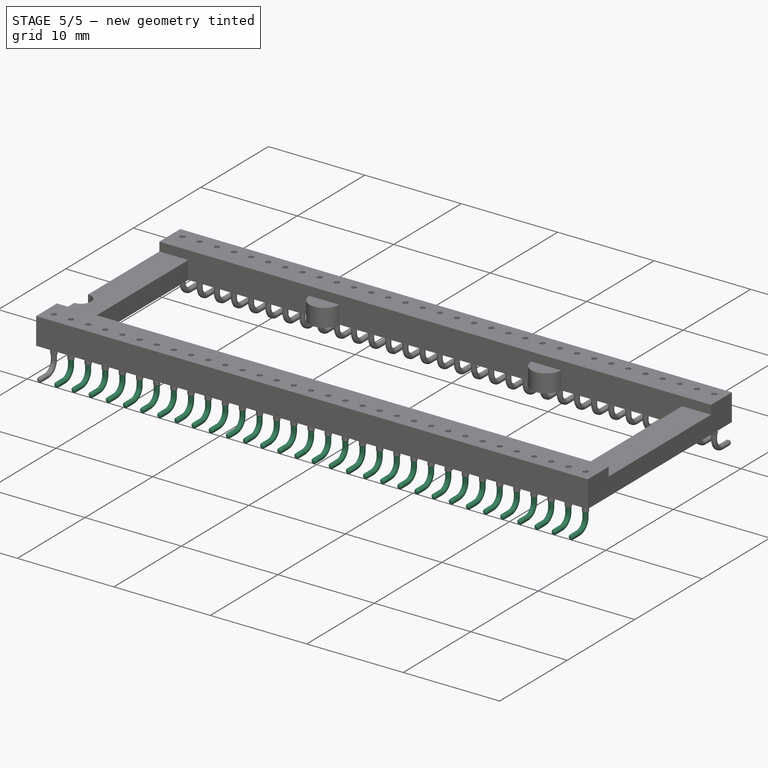
[diagram: stage 5 of 5 — iso view after this stage's code; geometry added in this stage tinted green]
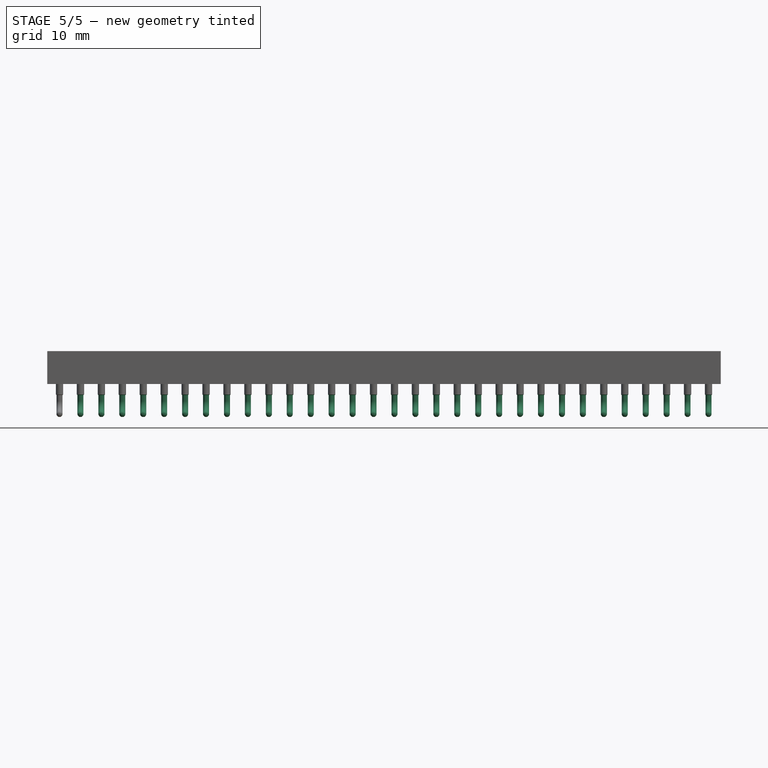
[diagram: stage 5 of 5 — front view after this stage's code; geometry added in this stage tinted green]
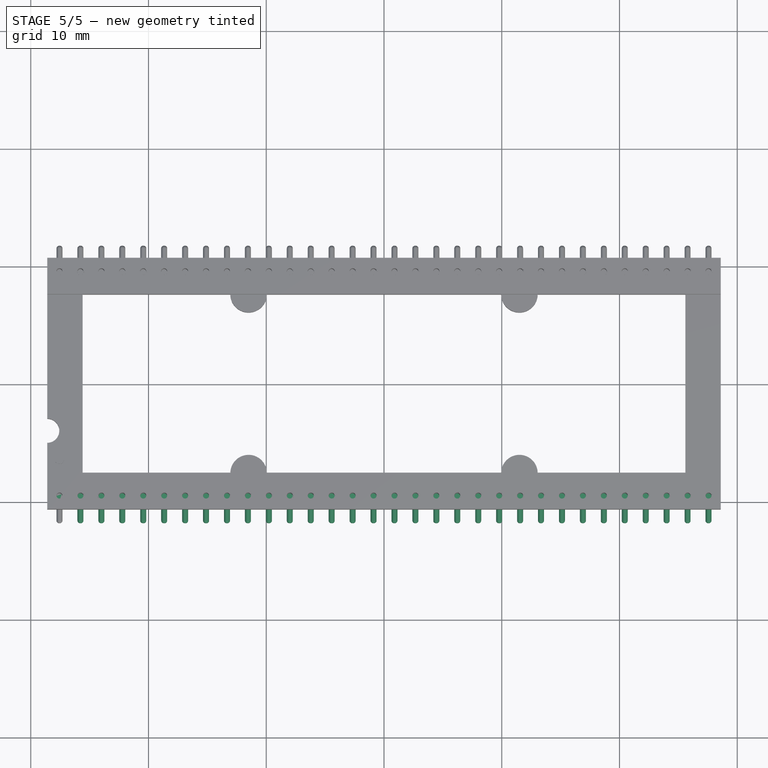
[diagram: stage 5 of 5 — top view after this stage's code; geometry added in this stage tinted green]
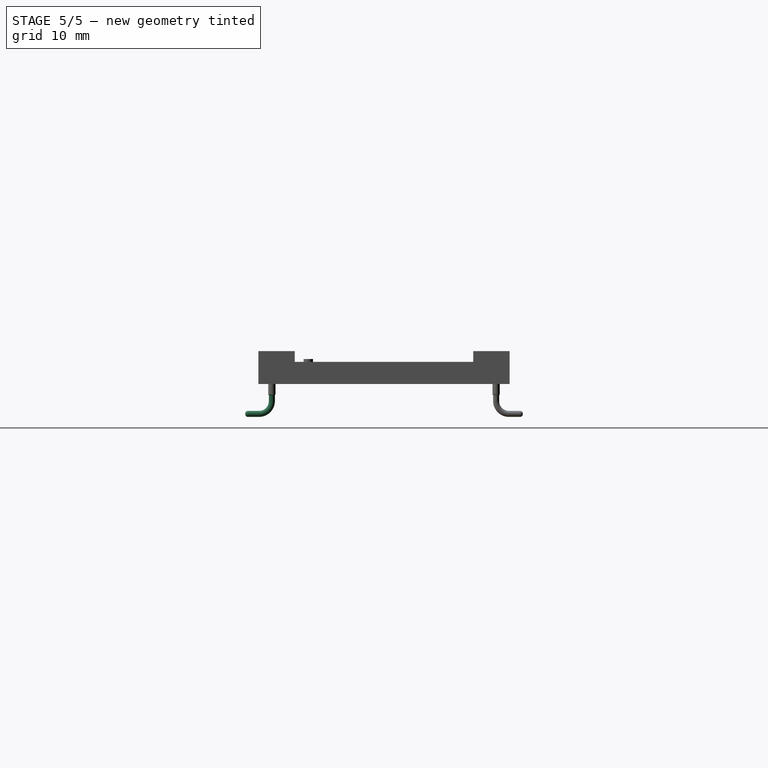
[diagram: stage 5 of 5 — right view after this stage's code; geometry added in this stage tinted green]
FEATURE [PartDesign::Fillet] Fillet
  Base = -> AdditivePipe [Edge55,Edge57,Edge49,Edge47]
  BaseFeature = -> AdditivePipe
  Placement = pos=(-27.559,-9.525,1.86) rot=(0,0,1;0rad)
  Radius = 0.2
  SupportTransform = false
  UseAllEdges = false
FEATURE [PartDesign::Fillet] Fillet001
  Base = -> Fillet [Edge83,Edge79,Edge69,Edge65]
  BaseFeature = -> Fillet
  Placement = pos=(-27.559,-9.525,1.86) rot=(0,0,1;0rad)
  Radius = 0.1
  SupportTransform = false
  UseAllEdges = false
FEATURE [PartDesign::Fillet] Fillet002
  Base = -> Fillet001 [Edge110,Edge92]
  BaseFeature = -> Fillet001
  Placement = pos=(-27.559,-9.525,1.86) rot=(0,0,1;0rad)
  Radius = 0.2205
  SupportTransform = false
  UseAllEdges = false
FEATURE [PartDesign::SubtractiveCylinder] Cylinder005
  Angle = 360
  AttacherType = Attacher::AttachEngine3D
  AttachmentOffset = pos=(-27.559,-9.525,1.91) rot=(0,0,1;0rad)
  BaseFeature = -> Fillet002
  FirstAngle = 0
  Height = 3.68
  MapMode = 5
  Placement = pos=(-27.559,-9.525,1.91) rot=(0,0,1;0rad)
  Radius = 0.255
  SecondAngle = 0
  Support = -> [XY_Plane001]
FEATURE [PartDesign::Chamfer] Chamfer  label="final-pin-shape"
  Angle = 49.15
  Base = -> Cylinder005 [Edge79]
  BaseFeature = -> Cylinder005
  ChamferType = 2
  FlipDirection = false
  Placement = pos=(-27.559,-9.525,1.91) rot=(0,0,1;0rad)
  Size = 0.042
  Size2 = 1
  SupportTransform = false
  UseAllEdges = false
FEATURE [Sketcher::SketchObject] Sketch001  label="leg-length"
  FullyConstrained = false
  MapMode = 2
  Placement = pos=(-27.559,-9.525,0) rot=(0,0,1;0rad)
  sketch-geometry (3):
    g0: LineSegment StartX=0 StartY=0 StartZ=0 EndX=0 EndY=-2.26 EndZ=0
    g1: LineSegment StartX=0 StartY=0 StartZ=0 EndX=0 EndY=-2.26 EndZ=0
    g2: LineSegment StartX=0 StartY=-2.26 StartZ=0 EndX=0 EndY=0 EndZ=0
  constraints (4):
    c: Coincident(g0,g-1)
    c: PointOnObject(g0,g-2)
    c: Vertical(g1)
    c: Vertical(g2)
FEATURE [PartDesign::Body] Body001  label="base-pin1"
  Group = -> [Cylinder004,Sketch001,Sketch,Sketch004,AdditivePipe,Fillet,Fillet001,Fillet002,Cylinder005,Chamfer]
  Origin = -> Origin001
  Tip = -> Chamfer
FEATURE [Part::FeaturePython] Array  label="bot-pins"  # Draft array (typed FeaturePython)
  AlwaysSyncPlacement = false
  Angle = 360
  ArrayType = 0
  Axis = (0,0,1)
  Base = -> Body001
  Center = (0,0,0)
  Count = 32
  ExpandArray = false
  Fuse = false
  IntervalAxis = (0,0,0)
  IntervalX = (1.778,0,0)
  IntervalY = (0,100,0)
  IntervalZ = (0,0,100)
  NumberCircles = 3
  NumberPolar = 5
  NumberX = 32
  NumberY = 1
  NumberZ = 1
  PlacementList = 32 placements: arithmetic series from (0,0,0) step (1.778,0,0) to (55.118,0,0)
  RadialDistance = 50
  ScaleList = (32) [(1,1,1),(1,1,1),(1,1,1),(1,1,1),(1,1,1),(1,1,1),(1,1,1),(1,1,1),(1,1,1),(1,1,1),(1,1,1),(1,1,1),(1,1,1),(1,1,1),(1,1,1),(1,1,1),(1,1,1),(1,1,1),+14 more]
  Symmetry = 1
  TangentialDistance = 25
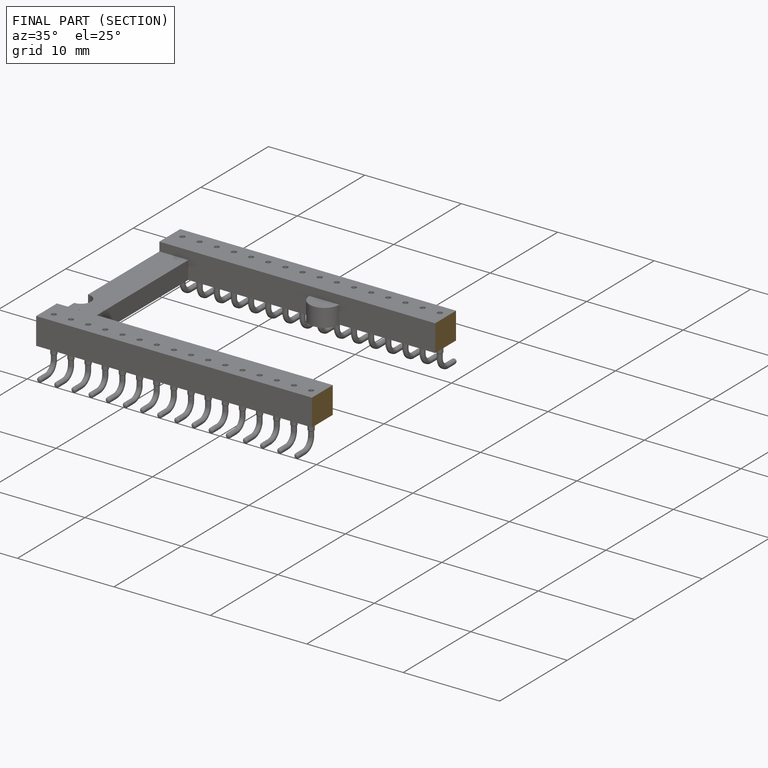
[diagram: finished part — half-section view (interior)]
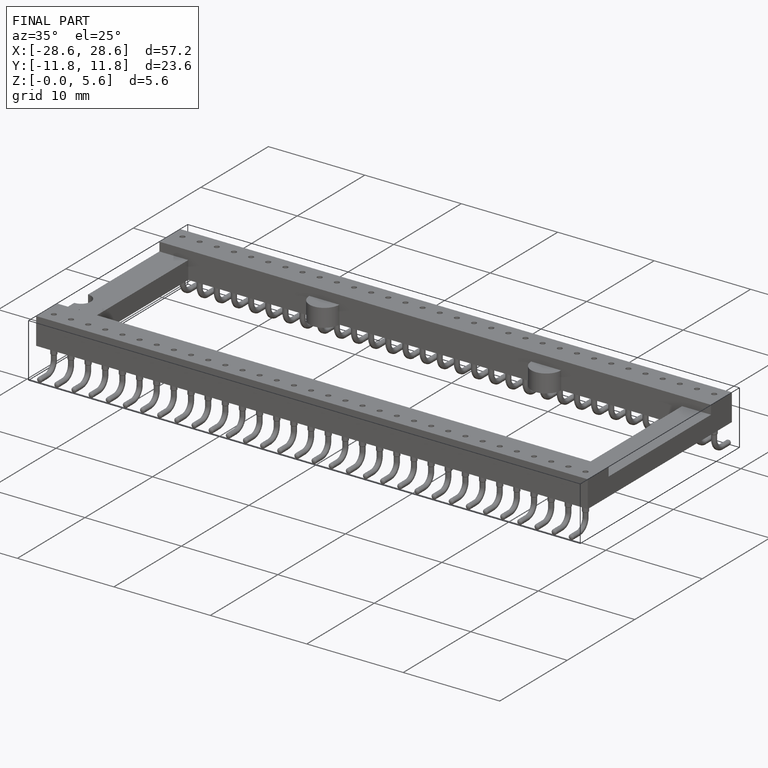
[diagram: finished part — iso view with bounding-box wireframe]
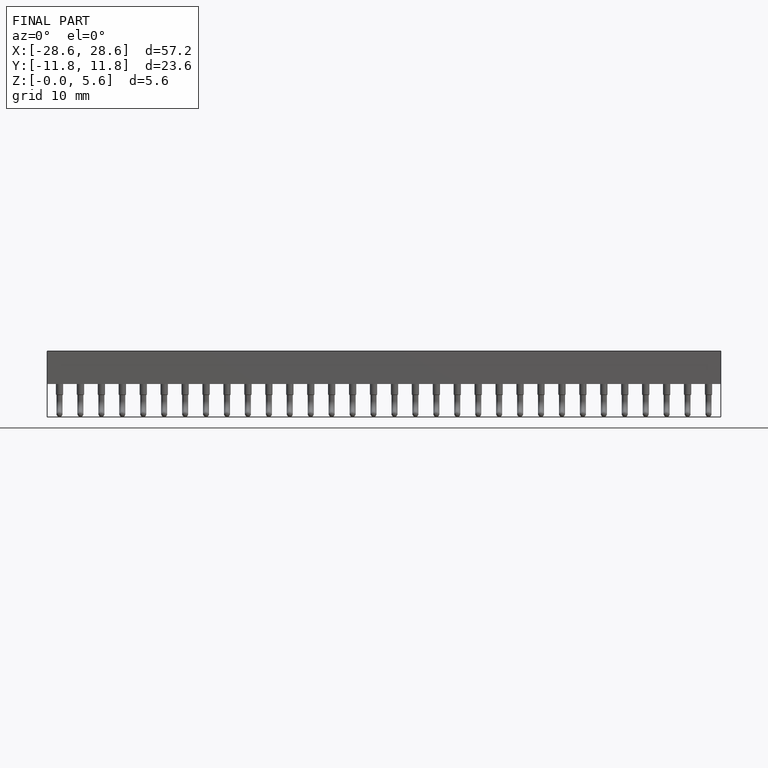
[diagram: finished part — front view with bounding-box wireframe]
